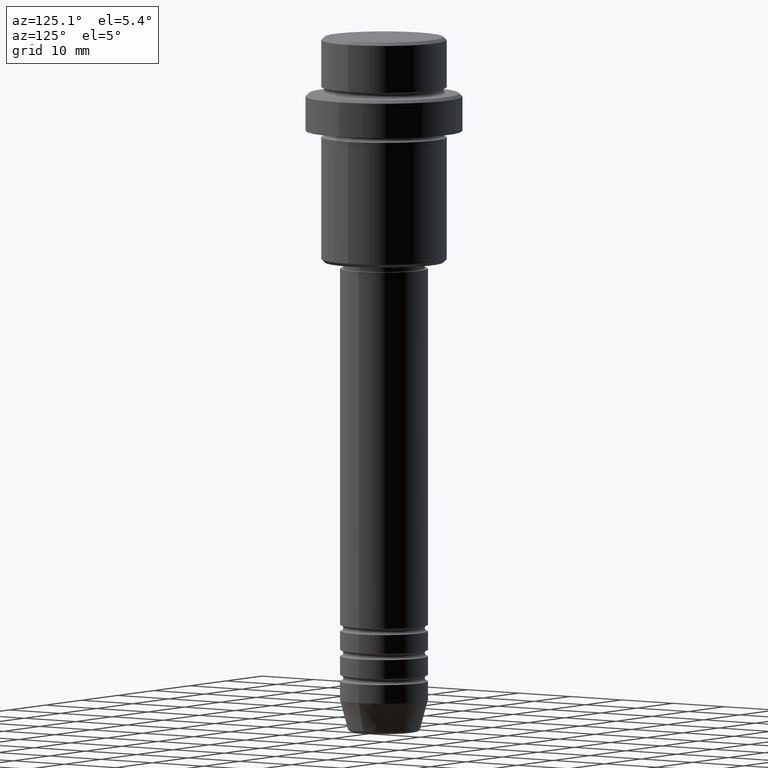
[diagram: clean part render]
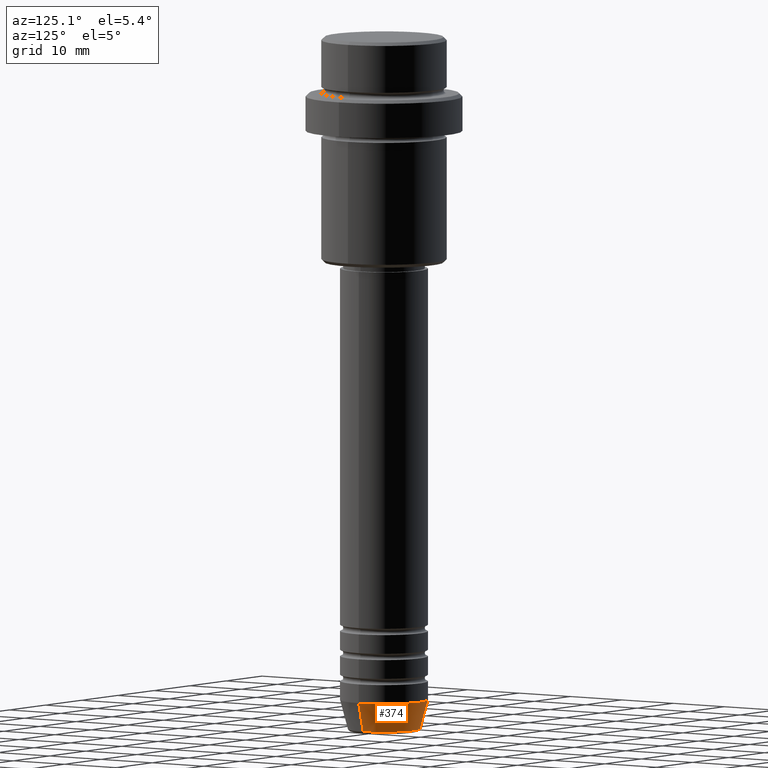
[diagram: same view with one face highlighted and labeled with its STEP entity id]
A machine part, auxiliary view. The second image highlights one B-rep face of the part: STEP entity #374.
In plain terms, the highlighted conical surface has half-angle 15 deg.
Its self-contained STEP definition (entity closure, byte-faithful):
#15 = CARTESIAN_POINT ( 'NONE',  ( 0.000000000000000000, 0.000000000000000000, -110.6294095225512422 ) ) ;
#60 = DIRECTION ( 'NONE',  ( 1.000000000000000000, 0.000000000000000000, 0.000000000000000000 ) ) ;
#65 = EDGE_CURVE ( 'NONE', #1366, #542, #122, .T. ) ;
#73 = DIRECTION ( 'NONE',  ( -0.2588190451025213501, 3.169619151431772337E-17, 0.9659258262890680902 ) ) ;
#98 = AXIS2_PLACEMENT_3D ( 'NONE', #1322, #107, #529 ) ;
#107 = DIRECTION ( 'NONE',  ( -0.000000000000000000, -0.000000000000000000, 1.000000000000000000 ) ) ;
#122 = CIRCLE ( 'NONE', #1270, 7.000000000000000000 ) ;
#207 = CARTESIAN_POINT ( 'NONE',  ( 7.000000000000000000, 0.000000000000000000, -106.0000000000000000 ) ) ;
#288 = EDGE_CURVE ( 'NONE', #839, #299, #633, .T. ) ;
#296 = CARTESIAN_POINT ( 'NONE',  ( -7.000000000000000000, 8.572527594031473190E-16, -106.0000000000000000 ) ) ;
#299 = VERTEX_POINT ( 'NONE', #459 ) ;
#348 = DIRECTION ( 'NONE',  ( -0.000000000000000000, -0.000000000000000000, 1.000000000000000000 ) ) ;
#374 = ADVANCED_FACE ( 'NONE', ( #1305 ), #573, .T. ) ;
#395 = CARTESIAN_POINT ( 'NONE',  ( 5.759553456999443988, 0.000000000000000000, -110.6294095225512422 ) ) ;
#441 = ORIENTED_EDGE ( 'NONE', *, *, #1010, .F. ) ;
#445 = DIRECTION ( 'NONE',  ( 0.2588190451025213501, 0.000000000000000000, 0.9659258262890680902 ) ) ;
#459 = CARTESIAN_POINT ( 'NONE',  ( -5.759553456999443988, 7.812973149831957689E-16, -110.6294095225512422 ) ) ;
#482 = ORIENTED_EDGE ( 'NONE', *, *, #65, .F. ) ;
#529 = DIRECTION ( 'NONE',  ( 1.000000000000000000, 0.000000000000000000, 0.000000000000000000 ) ) ;
#542 = VERTEX_POINT ( 'NONE', #857 ) ;
#573 = CONICAL_SURFACE ( 'NONE', #98, 7.000000000000000000, 0.2617993877991500740 ) ;
#592 = VECTOR ( 'NONE', #445, 1000.000000000000000 ) ;
#633 = CIRCLE ( 'NONE', #1174, 5.759553456999443988 ) ;
#641 = LINE ( 'NONE', #975, #592 ) ;
#694 = EDGE_LOOP ( 'NONE', ( #1256, #890, #482, #441 ) ) ;
#839 = VERTEX_POINT ( 'NONE', #395 ) ;
#857 = CARTESIAN_POINT ( 'NONE',  ( -7.000000000000000000, 8.572527594031473190E-16, -106.0000000000000000 ) ) ;
#890 = ORIENTED_EDGE ( 'NONE', *, *, #894, .T. ) ;
#894 = EDGE_CURVE ( 'NONE', #299, #542, #1048, .T. ) ;
#975 = CARTESIAN_POINT ( 'NONE',  ( 7.000000000000000000, 0.000000000000000000, -106.0000000000000000 ) ) ;
#980 = DIRECTION ( 'NONE',  ( 1.000000000000000000, 0.000000000000000000, 0.000000000000000000 ) ) ;
#1010 = EDGE_CURVE ( 'NONE', #839, #1366, #641, .T. ) ;
#1021 = CARTESIAN_POINT ( 'NONE',  ( 0.000000000000000000, 0.000000000000000000, -106.0000000000000000 ) ) ;
#1042 = VECTOR ( 'NONE', #73, 1000.000000000000000 ) ;
#1048 = LINE ( 'NONE', #296, #1042 ) ;
#1156 = DIRECTION ( 'NONE',  ( -0.000000000000000000, -0.000000000000000000, 1.000000000000000000 ) ) ;
#1174 = AXIS2_PLACEMENT_3D ( 'NONE', #15, #348, #980 ) ;
#1256 = ORIENTED_EDGE ( 'NONE', *, *, #288, .T. ) ;
#1270 = AXIS2_PLACEMENT_3D ( 'NONE', #1021, #1156, #60 ) ;
#1305 = FACE_OUTER_BOUND ( 'NONE', #694, .T. ) ;
#1322 = CARTESIAN_POINT ( 'NONE',  ( 0.000000000000000000, 0.000000000000000000, -106.0000000000000000 ) ) ;
#1366 = VERTEX_POINT ( 'NONE', #207 ) ;